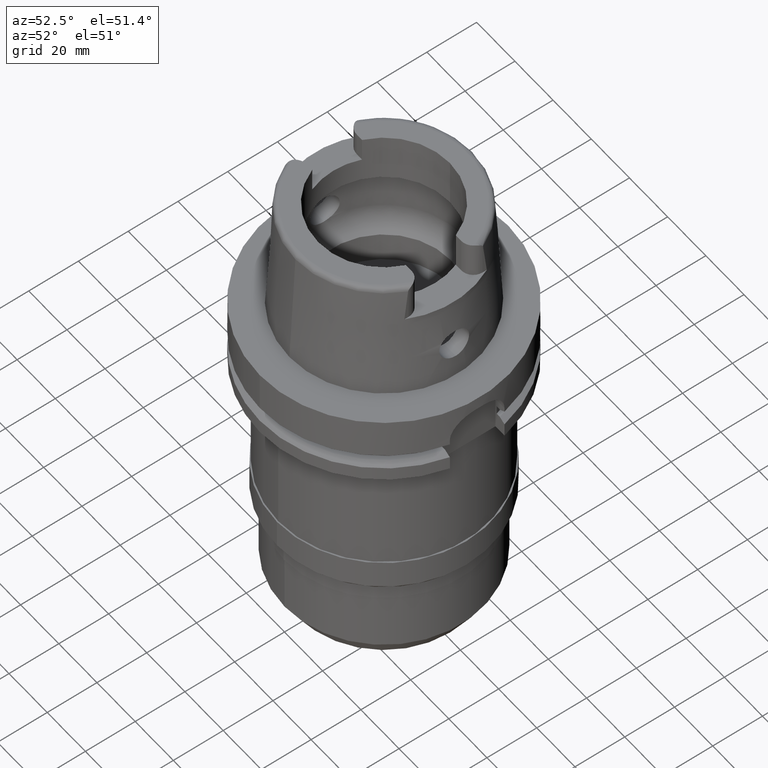
[diagram: clean part render]
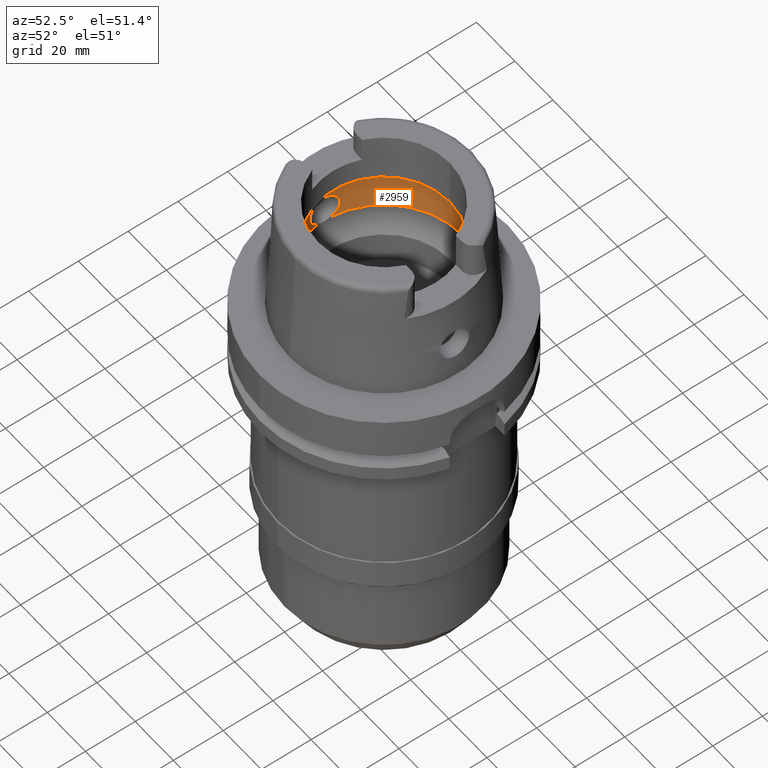
[diagram: same view with one face highlighted and labeled with its STEP entity id]
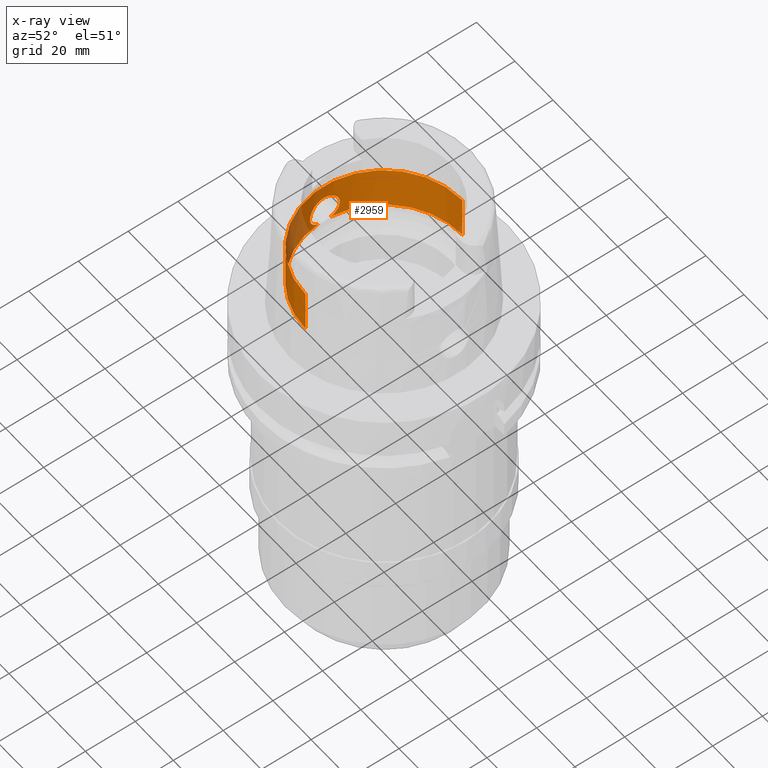
[diagram: x-ray of the same camera — body ghosted, the highlighted face saturated]
A machine part, auxiliary view. The second image highlights one B-rep face of the part: STEP entity #2959.
The next image is the same camera in x-ray: the body ghosted, the highlighted face saturated — about 10% of this face is hidden behind the body in this view.
In plain terms, the highlighted cylindrical surface (partial cylindrical patch) has radius 31.5 mm, axis along (0, 0, 1).
Its self-contained STEP definition (entity closure, byte-faithful):
#468=CARTESIAN_POINT('',(0.E0,0.E0,2.711662432703E1));
#469=DIRECTION('',(0.E0,0.E0,1.E0));
#470=DIRECTION('',(0.E0,1.E0,0.E0));
#471=AXIS2_PLACEMENT_3D('',#468,#469,#470);
#491=DIRECTION('',(0.E0,5.000414258470E-14,1.E0));
#492=VECTOR('',#491,1.762E1);
#493=CARTESIAN_POINT('',(0.E0,-3.15E1,9.496624327026E0));
#494=LINE('',#493,#492);
#498=CARTESIAN_POINT('',(-3.140918884336E1,-2.390158196044E0,9.496624327026E0));
#499=CARTESIAN_POINT('',(-3.137435325420E1,-2.847934421981E0,9.695440047303E0));
#500=CARTESIAN_POINT('',(-3.128809338894E1,-3.713276421438E0,1.020725634696E1));
#501=CARTESIAN_POINT('',(-3.113901855375E1,-4.785626694170E0,1.127759817380E1));
#502=CARTESIAN_POINT('',(-3.100843444758E1,-5.553790228339E0,1.257135510224E1));
#503=CARTESIAN_POINT('',(-3.092759470413E1,-5.978908303114E0,1.400300560868E1));
#504=CARTESIAN_POINT('',(-3.091528045307E1,-6.040917958569E0,1.549921984866E1));
#505=CARTESIAN_POINT('',(-3.097470290789E1,-5.735233146120E0,1.696364566020E1));
#506=CARTESIAN_POINT('',(-3.109259859894E1,-5.072547124083E0,1.832087093332E1));
#507=CARTESIAN_POINT('',(-3.123950295375E1,-4.094141006985E0,1.947118559047E1));
#508=CARTESIAN_POINT('',(-3.137863216362E1,-2.867113826876E0,2.034097222488E1));
#509=CARTESIAN_POINT('',(-3.147672398123E1,-1.472117199996E0,2.087956779838E1));
#510=CARTESIAN_POINT('',(-3.15E1,-4.896061312585E-1,2.1E1));
#511=CARTESIAN_POINT('',(-3.15E1,0.E0,2.1E1));
#552=CARTESIAN_POINT('',(-3.15E1,0.E0,2.1E1));
#553=CARTESIAN_POINT('',(-3.15E1,4.929942840388E-1,2.1E1));
#554=CARTESIAN_POINT('',(-3.147639622637E1,1.481509566466E0,2.087789116200E1));
#555=CARTESIAN_POINT('',(-3.137733140363E1,2.881783911515E0,2.033360561780E1));
#556=CARTESIAN_POINT('',(-3.123743837794E1,4.109778356595E0,1.945722337806E1));
#557=CARTESIAN_POINT('',(-3.109043667641E1,5.085533467478E0,1.830117664154E1));
#558=CARTESIAN_POINT('',(-3.097324940445E1,5.742902956158E0,1.694095596794E1));
#559=CARTESIAN_POINT('',(-3.091494301792E1,6.042607693033E0,1.547652652397E1));
#560=CARTESIAN_POINT('',(-3.092831353172E1,5.975260892141E0,1.398291605805E1));
#561=CARTESIAN_POINT('',(-3.100969892911E1,5.546811116096E0,1.255632415830E1));
#562=CARTESIAN_POINT('',(-3.114019631891E1,4.777910330436E0,1.126839189409E1));
#563=CARTESIAN_POINT('',(-3.128867392362E1,3.707971858400E0,1.020378307045E1));
#564=CARTESIAN_POINT('',(-3.137450449598E1,2.845946946127E0,9.694576871321E0));
#565=CARTESIAN_POINT('',(-3.140918884336E1,2.390158196044E0,9.496624327026E0));
#606=CARTESIAN_POINT('',(0.E0,0.E0,9.496624327026E0));
#607=DIRECTION('',(0.E0,0.E0,-1.E0));
#608=DIRECTION('',(-9.971171061384E-1,7.587803796965E-2,0.E0));
#609=AXIS2_PLACEMENT_3D('',#606,#607,#608);
#630=CARTESIAN_POINT('',(0.E0,0.E0,9.496624327026E0));
#631=DIRECTION('',(0.E0,0.E0,-1.E0));
#632=DIRECTION('',(0.E0,-1.E0,0.E0));
#633=AXIS2_PLACEMENT_3D('',#630,#631,#632);
#724=DIRECTION('',(0.E0,-5.000414258470E-14,1.E0));
#725=VECTOR('',#724,1.762E1);
#726=CARTESIAN_POINT('',(0.E0,3.15E1,9.496624327026E0));
#727=LINE('',#726,#725);
#2352=CARTESIAN_POINT('',(0.E0,3.15E1,2.711662432703E1));
#2353=VERTEX_POINT('',#2352);
#2354=CARTESIAN_POINT('',(0.E0,-3.15E1,2.711662432703E1));
#2355=VERTEX_POINT('',#2354);
#2356=VERTEX_POINT('',#498);
#2357=VERTEX_POINT('',#511);
#2358=CARTESIAN_POINT('',(0.E0,-3.15E1,9.496624327026E0));
#2359=VERTEX_POINT('',#2358);
#2360=CARTESIAN_POINT('',(0.E0,3.15E1,9.496624327026E0));
#2361=VERTEX_POINT('',#2360);
#2362=CARTESIAN_POINT('',(-3.140918884336E1,2.390158196044E0,9.496624327026E0));
#2363=VERTEX_POINT('',#2362);
#2939=CARTESIAN_POINT('',(0.E0,0.E0,-1.4467E2));
#2940=DIRECTION('',(0.E0,0.E0,1.E0));
#2941=DIRECTION('',(0.E0,1.E0,0.E0));
#2942=AXIS2_PLACEMENT_3D('',#2939,#2940,#2941);
#2943=CYLINDRICAL_SURFACE('',#2942,3.15E1);
#2945=ORIENTED_EDGE('',*,*,#2944,.F.);
#2947=ORIENTED_EDGE('',*,*,#2946,.F.);
#2949=ORIENTED_EDGE('',*,*,#2948,.T.);
#2950=ORIENTED_EDGE('',*,*,#2932,.F.);
#2952=ORIENTED_EDGE('',*,*,#2951,.F.);
#2954=ORIENTED_EDGE('',*,*,#2953,.F.);
#2956=ORIENTED_EDGE('',*,*,#2955,.F.);
#2957=EDGE_LOOP('',(#2945,#2947,#2949,#2950,#2952,#2954,#2956));
#2958=FACE_OUTER_BOUND('',#2957,.F.);
#472=CIRCLE('',#471,3.15E1);
#512=B_SPLINE_CURVE_WITH_KNOTS('',3,(#498,#499,#500,#501,#502,#503,#504,#505,
#506,#507,#508,#509,#510,#511),.UNSPECIFIED.,.F.,.F.,(4,1,1,1,1,1,1,1,1,1,1,4),(
0.E0,9.090909090909E-2,1.818181818182E-1,2.727272727273E-1,3.636363636364E-1,
4.545454545455E-1,5.454545454545E-1,6.363636363636E-1,7.272727272727E-1,
8.181818181818E-1,9.090909090909E-1,1.E0),.UNSPECIFIED.);
#566=B_SPLINE_CURVE_WITH_KNOTS('',3,(#552,#553,#554,#555,#556,#557,#558,#559,
#560,#561,#562,#563,#564,#565),.UNSPECIFIED.,.F.,.F.,(4,1,1,1,1,1,1,1,1,1,1,4),(
0.E0,9.090909090909E-2,1.818181818182E-1,2.727272727273E-1,3.636363636364E-1,
4.545454545455E-1,5.454545454545E-1,6.363636363636E-1,7.272727272727E-1,
8.181818181818E-1,9.090909090909E-1,1.E0),.UNSPECIFIED.);
#610=CIRCLE('',#609,3.15E1);
#634=CIRCLE('',#633,3.15E1);
#2932=EDGE_CURVE('',#2353,#2355,#472,.T.);
#2944=EDGE_CURVE('',#2356,#2357,#512,.T.);
#2946=EDGE_CURVE('',#2359,#2356,#634,.T.);
#2948=EDGE_CURVE('',#2359,#2355,#494,.T.);
#2951=EDGE_CURVE('',#2361,#2353,#727,.T.);
#2953=EDGE_CURVE('',#2363,#2361,#610,.T.);
#2955=EDGE_CURVE('',#2357,#2363,#566,.T.);
#2959=ADVANCED_FACE('',(#2958),#2943,.F.);